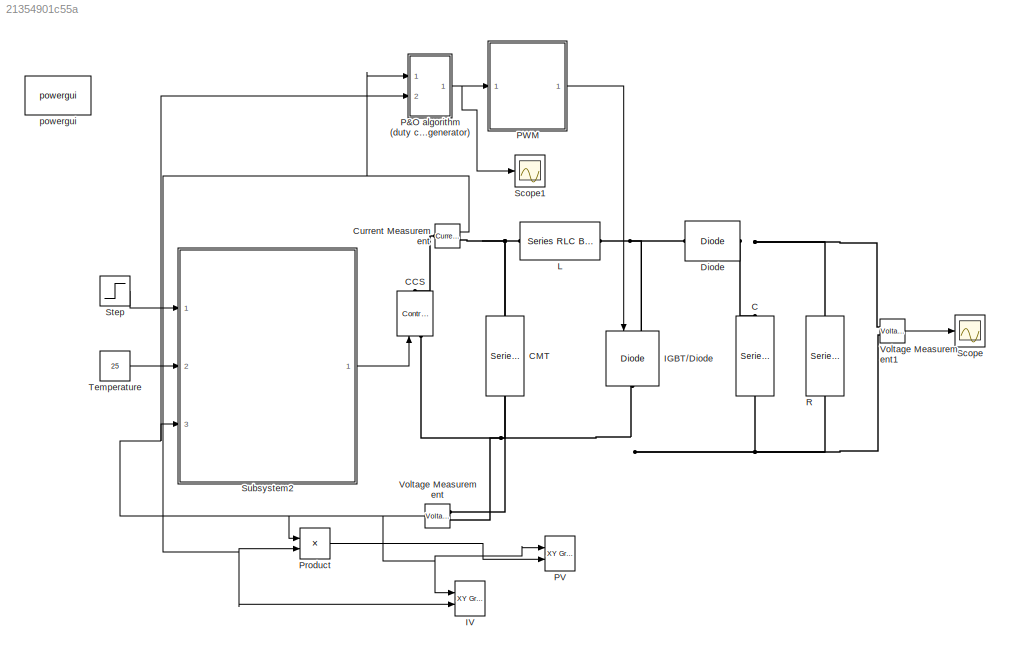
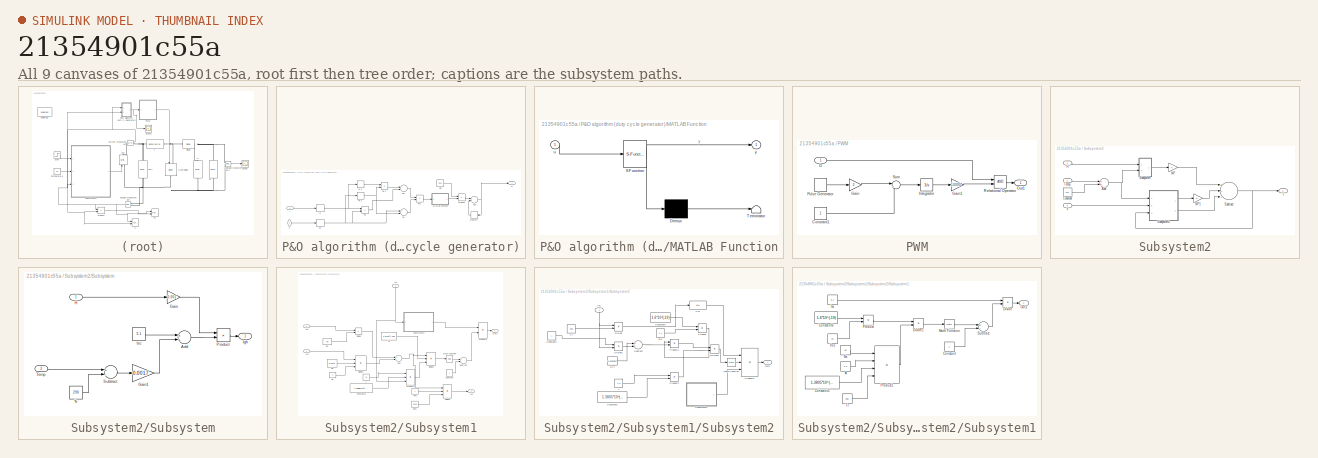
[diagram: thumbnail index - all 9 canvases of the model, root first then tree order]
MODEL slx_21354901c55a
KIND model
CONFIG AbsTol = auto
CONFIG FixedStep = auto
CONFIG MaxStep = auto
CONFIG MinStep = auto
CONFIG RelTol = 1e-3
CONFIG SampleTimeConstraint = Unconstrained
CONFIG Solver = ode23tb
CONFIG SolverMode = Auto
CONFIG SolverName = ode23tb
CONFIG StartTime = 0.0
CONFIG StopTime = 1.0
BLOCK [Reference] C  REF=powerlib/Elements/Series RLC Branch
  BranchType = C
  Capacitance = 1000e-6
  Inductance = 1e-3
  InitialCurrent = 0
  InitialVoltage = 0
  LConnTagsString = __new0
  Measurements = None
  Ports = [0, 0, 0, 0, 0, 1, 1]
  RConnTagsString = __new0
  Resistance = 1
  SetiL0 = off
  Setx0 = off
  SourceBlock = powerlib/Elements/Series RLC Branch
  SourceType = Series RLC Branch
BLOCK [Reference] CCS  REF=powerlib/Electrical
Sources/Controlled Current Source
  Amplitude = 0
  Frequency = 0
  Initialize = on
  Measurements = None
  Phase = 0
  Ports = [1, 0, 0, 0, 0, 1, 1]
  SourceBlock = powerlib/Electrical\nSources/Controlled Current Source
  SourceType = Controlled Current Source
  Source_Type = AC
BLOCK [Reference] CMT  REF=powerlib/Elements/Series RLC Branch
  BranchType = C
  Capacitance = 1000e-6
  Inductance = 1e-3
  InitialCurrent = 0
  InitialVoltage = 0
  LConnTagsString = __new0
  Measurements = None
  Ports = [0, 0, 0, 0, 0, 1, 1]
  RConnTagsString = __new0
  Resistance = 1
  SetiL0 = off
  Setx0 = off
  SourceBlock = powerlib/Elements/Series RLC Branch
  SourceType = Series RLC Branch
BLOCK [Reference] Current Measurement  REF=powerlib/Measurements/Current Measurement
  OutputType = Complex
  PSBequivalent = 0
  PhasorSimulation = off
  Ports = [0, 1, 0, 0, 0, 1, 1]
  SourceBlock = powerlib/Measurements/Current Measurement
  SourceType = Current Measurement
  UserDataPersistent = on
BLOCK [Reference] Diode  REF=powerlib/Power
Electronics/Diode
  Cs = 250e-9
  IC = 0
  Lon = 0
  Measurements = off
  Ports = [0, 0, 0, 0, 0, 1, 1]
  Ron = 0.001
  Rs = 500
  SourceBlock = powerlib/Power\nElectronics/Diode
  SourceType = Diode
  UseSnubber = off
  Vf = 0.8
BLOCK [Reference] IGBT//Diode  REF=powerlib/Power
Electronics/IGBT//Diode
  Cs = inf
  Measurements = off
  Ports = [1, 0, 0, 0, 0, 1, 1]
  Ron = 1e-3
  Rs = 1e5
  SourceBlock = powerlib/Power\nElectronics/IGBT//Diode
  SourceType = IGBT/Diode
BLOCK [Reference] IV  REF=simulink/Sinks/XY Graph
  Ports = [2]
  SourceBlock = simulink/Sinks/XY Graph
  SourceType = XY scope.
  st = -1
  xmax = 30
  xmin = 0
  ymax = 8
  ymin = 0
BLOCK [Reference] L  REF=powerlib/Elements/Series RLC Branch
  BranchType = L
  Capacitance = 1e-6
  Inductance = 4e-4
  InitialCurrent = 0
  InitialVoltage = 0
  LConnTagsString = __new0
  Measurements = None
  Ports = [0, 0, 0, 0, 0, 1, 1]
  RConnTagsString = __new0
  Resistance = 1
  SetiL0 = off
  Setx0 = off
  SourceBlock = powerlib/Elements/Series RLC Branch
  SourceType = Series RLC Branch
BLOCK [SubSystem] P&O algorithm (duty cycle generator)
  Ports = [2, 1]
  RequestExecContextInheritance = off
BLOCK [Sum] P&O algorithm (duty cycle generator)/Add
  InputSameDT = off
  OutDataTypeStr = Inherit: Inherit via internal rule
  Ports = [2, 1]
  SaturateOnIntegerOverflow = off
BLOCK [Outport] P&O algorithm (duty cycle generator)/D
  IconDisplay = Port number
BLOCK [Constant] P&O algorithm (duty cycle generator)/Dd
  Value = 0.01
BLOCK [Sum] P&O algorithm (duty cycle generator)/Dp
  InputSameDT = off
  Inputs = -+
  OutDataTypeStr = Inherit: Inherit via internal rule
  Ports = [2, 1]
  SaturateOnIntegerOverflow = off
BLOCK [Sum] P&O algorithm (duty cycle generator)/Dv
  InputSameDT = off
  Inputs = +-
  OutDataTypeStr = Inherit: Inherit via internal rule
  Ports = [2, 1]
  SaturateOnIntegerOverflow = off
BLOCK [Inport] P&O algorithm (duty cycle generator)/I
  IconDisplay = Port number
BLOCK [ZeroOrderHold] P&O algorithm (duty cycle generator)/Ik
  SampleTime = 0.001
BLOCK [Memory] P&O algorithm (duty cycle generator)/Ik-1
BLOCK [SubSystem] P&O algorithm (duty cycle generator)/MATLAB Function
  ErrorFcn = Stateflow.Translate.translate
  PermitHierarchicalResolution = ExplicitOnly
  Ports = [1, 1]
  RequestExecContextInheritance = off
  SFBlockType = MATLAB Function
  TreatAsAtomicUnit = on
BLOCK [Demux] P&O algorithm (duty cycle generator)/MATLAB Function/ Demux 
  Outputs = 1
  Ports = [1, 1]
BLOCK [S-Function] P&O algorithm (duty cycle generator)/MATLAB Function/ SFunction 
  EnableBusSupport = on
  FunctionName = sf_sfun
  PortCounts = [1 2]
  Ports = [1, 2]
  Tag = Stateflow S-Function mppt 2
BLOCK [Terminator] P&O algorithm (duty cycle generator)/MATLAB Function/ Terminator 
BLOCK [Inport] P&O algorithm (duty cycle generator)/MATLAB Function/u
  IconDisplay = Port number
BLOCK [Outport] P&O algorithm (duty cycle generator)/MATLAB Function/y
  IconDisplay = Port number
BLOCK [Memory] P&O algorithm (duty cycle generator)/Memory
BLOCK [Product] P&O algorithm (duty cycle generator)/Pk
  InputSameDT = off
  OutDataTypeStr = Inherit: Inherit via internal rule
  Ports = [2, 1]
  RndMeth = Floor
  SaturateOnIntegerOverflow = off
BLOCK [Product] P&O algorithm (duty cycle generator)/Pk-1
  InputSameDT = off
  OutDataTypeStr = Inherit: Inherit via internal rule
  Ports = [2, 1]
  RndMeth = Floor
  SaturateOnIntegerOverflow = off
BLOCK [Product] P&O algorithm (duty cycle generator)/Pk1
  InputSameDT = off
  OutDataTypeStr = Inherit: Inherit via internal rule
  Ports = [2, 1]
  RndMeth = Floor
  SaturateOnIntegerOverflow = off
BLOCK [Product] P&O algorithm (duty cycle generator)/Product
  InputSameDT = off
  OutDataTypeStr = Inherit: Inherit via internal rule
  Ports = [2, 1]
  RndMeth = Floor
  SaturateOnIntegerOverflow = off
BLOCK [Inport] P&O algorithm (duty cycle generator)/V
  IconDisplay = Port number
  Port = 2
BLOCK [ZeroOrderHold] P&O algorithm (duty cycle generator)/Vk
  SampleTime = 0.001
BLOCK [Memory] P&O algorithm (duty cycle generator)/Vk-1
BLOCK [Reference] PV  REF=simulink/Sinks/XY Graph
  Ports = [2]
  SourceBlock = simulink/Sinks/XY Graph
  SourceType = XY scope.
  st = -1
  xmax = 20
  xmin = 0
  ymax = 75
  ymin = 0
BLOCK [SubSystem] PWM
  Ports = [1, 1]
  RequestExecContextInheritance = off
BLOCK [Constant] PWM/Constant1
BLOCK [Inport] PWM/D
  IconDisplay = Port number
BLOCK [Gain] PWM/Gain
  Gain = 2
  OutDataTypeStr = Inherit: Inherit via internal rule
  ParamDataTypeStr = Inherit: Inherit via internal rule
  SaturateOnIntegerOverflow = off
BLOCK [Gain] PWM/Gain1
  Gain = 10000
  OutDataTypeStr = Inherit: Inherit via internal rule
  ParamDataTypeStr = Inherit: Inherit via internal rule
  SaturateOnIntegerOverflow = off
BLOCK [Integrator] PWM/Integrator
  Ports = [1, 1]
BLOCK [Outport] PWM/Out1
  IconDisplay = Port number
BLOCK [DiscretePulseGenerator] PWM/Pulse Generator
  Period = 0.0002
  Ports = [0, 1]
  PulseType = Time based
  PulseWidth = 50
BLOCK [RelationalOperator] PWM/Relational Operator
  InputSameDT = off
  OutDataTypeStr = boolean
  Ports = [2, 1]
BLOCK [Sum] PWM/Sum
  IconShape = round
  InputSameDT = off
  Inputs = |+-
  OutDataTypeStr = Inherit: Inherit via internal rule
  Ports = [2, 1]
  SaturateOnIntegerOverflow = off
BLOCK [Product] Product
  InputSameDT = off
  OutDataTypeStr = Inherit: Inherit via internal rule
  Ports = [2, 1]
  RndMeth = Floor
  SaturateOnIntegerOverflow = off
BLOCK [Reference] R  REF=powerlib/Elements/Series RLC Branch
  BranchType = R
  Capacitance = 1e-6
  Inductance = 1e-3
  InitialCurrent = 0
  InitialVoltage = 0
  LConnTagsString = __new0
  Measurements = None
  Ports = [0, 0, 0, 0, 0, 1, 1]
  RConnTagsString = __new0
  Resistance = 5
  SetiL0 = off
  Setx0 = off
  SourceBlock = powerlib/Elements/Series RLC Branch
  SourceType = Series RLC Branch
BLOCK [Scope] Scope
  Floating = off
  NumInputPorts = 1
  Ports = [1]
  YMax = 20.2
  YMin = 18.2
BLOCK [Scope] Scope1
  Floating = off
  NumInputPorts = 1
  Ports = [1]
  SaveName = ScopeData1
  YMax = -1.75
BLOCK [Step] Step
  After = 1000
  Before = 600
  SampleTime = 0
  Time = 0.5
BLOCK [SubSystem] Subsystem2
  Ports = [3, 1]
  RequestExecContextInheritance = off
BLOCK [Sum] Subsystem2/Add
  InputSameDT = off
  OutDataTypeStr = Inherit: Inherit via internal rule
  Ports = [2, 1]
  SaturateOnIntegerOverflow = off
BLOCK [Constant] Subsystem2/Constant
  Value = 273
BLOCK [Inport] Subsystem2/H
  IconDisplay = Port number
BLOCK [Outport] Subsystem2/I
  IconDisplay = Port number
BLOCK [Gain] Subsystem2/NP
  OutDataTypeStr = Inherit: Inherit via internal rule
  ParamDataTypeStr = Inherit: Inherit via internal rule
  SaturateOnIntegerOverflow = off
BLOCK [Gain] Subsystem2/NP1
  OutDataTypeStr = Inherit: Inherit via internal rule
  ParamDataTypeStr = Inherit: Inherit via internal rule
  SaturateOnIntegerOverflow = off
BLOCK [SubSystem] Subsystem2/Subsystem
  Ports = [2, 1]
  RequestExecContextInheritance = off
BLOCK [Sum] Subsystem2/Subsystem/Add
  InputSameDT = off
  OutDataTypeStr = Inherit: Inherit via internal rule
  Ports = [2, 1]
  SaturateOnIntegerOverflow = off
BLOCK [Gain] Subsystem2/Subsystem/Gain
  Gain = 0.001
  OutDataTypeStr = Inherit: Inherit via internal rule
  ParamDataTypeStr = Inherit: Inherit via internal rule
  SaturateOnIntegerOverflow = off
BLOCK [Gain] Subsystem2/Subsystem/Gain1
  Gain = 0.0017
  OutDataTypeStr = Inherit: Inherit via internal rule
  ParamDataTypeStr = Inherit: Inherit via internal rule
  SaturateOnIntegerOverflow = off
BLOCK [Inport] Subsystem2/Subsystem/H
  IconDisplay = Port number
BLOCK [Outport] Subsystem2/Subsystem/Igh
  IconDisplay = Port number
BLOCK [Constant] Subsystem2/Subsystem/Isc
  Value = 5.1
BLOCK [Product] Subsystem2/Subsystem/Product
  InputSameDT = off
  OutDataTypeStr = Inherit: Inherit via internal rule
  Ports = [2, 1]
  RndMeth = Floor
  SaturateOnIntegerOverflow = off
BLOCK [Sum] Subsystem2/Subsystem/Subtract
  InputSameDT = off
  Inputs = +-
  OutDataTypeStr = Inherit: Inherit via internal rule
  Ports = [2, 1]
  SaturateOnIntegerOverflow = off
BLOCK [Inport] Subsystem2/Subsystem/Temp
  IconDisplay = Port number
  Port = 2
BLOCK [Constant] Subsystem2/Subsystem/Tr
  Value = 298
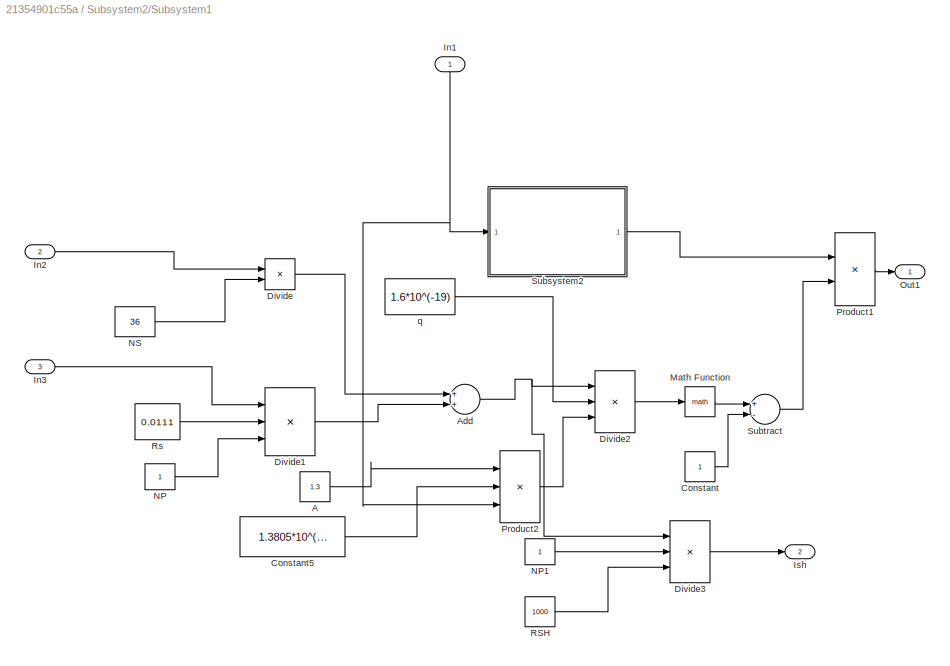
BLOCK [SubSystem] Subsystem2/Subsystem1
  Ports = [3, 2]
  RequestExecContextInheritance = off
BLOCK [Constant] Subsystem2/Subsystem1/A
  Value = 1.3
BLOCK [Sum] Subsystem2/Subsystem1/Add
  InputSameDT = off
  OutDataTypeStr = Inherit: Inherit via internal rule
  Ports = [2, 1]
  SaturateOnIntegerOverflow = off
BLOCK [Constant] Subsystem2/Subsystem1/Constant
BLOCK [Constant] Subsystem2/Subsystem1/Constant5
  Value = 1.3805*10^(-23)
BLOCK [Product] Subsystem2/Subsystem1/Divide
  InputSameDT = off
  Inputs = */
  OutDataTypeStr = Inherit: Inherit via internal rule
  Ports = [2, 1]
  RndMeth = Floor
  SaturateOnIntegerOverflow = off
BLOCK [Product] Subsystem2/Subsystem1/Divide1
  InputSameDT = off
  Inputs = **/
  OutDataTypeStr = Inherit: Inherit via internal rule
  Ports = [3, 1]
  RndMeth = Floor
  SaturateOnIntegerOverflow = off
BLOCK [Product] Subsystem2/Subsystem1/Divide2
  InputSameDT = off
  Inputs = **/
  OutDataTypeStr = Inherit: Inherit via internal rule
  Ports = [3, 1]
  RndMeth = Floor
  SaturateOnIntegerOverflow = off
BLOCK [Product] Subsystem2/Subsystem1/Divide3
  InputSameDT = off
  Inputs = **/
  OutDataTypeStr = Inherit: Inherit via internal rule
  Ports = [3, 1]
  RndMeth = Floor
  SaturateOnIntegerOverflow = off
BLOCK [Inport] Subsystem2/Subsystem1/In1
  IconDisplay = Port number
BLOCK [Inport] Subsystem2/Subsystem1/In2
  IconDisplay = Port number
  Port = 2
BLOCK [Inport] Subsystem2/Subsystem1/In3
  IconDisplay = Port number
  Port = 3
BLOCK [Outport] Subsystem2/Subsystem1/Ish
  IconDisplay = Port number
  Port = 2
BLOCK [Math] Subsystem2/Subsystem1/Math Function
  Ports = [1, 1]
BLOCK [Constant] Subsystem2/Subsystem1/NP
BLOCK [Constant] Subsystem2/Subsystem1/NP1
BLOCK [Constant] Subsystem2/Subsystem1/NS
  Value = 36
BLOCK [Outport] Subsystem2/Subsystem1/Out1
  IconDisplay = Port number
BLOCK [Product] Subsystem2/Subsystem1/Product1
  InputSameDT = off
  OutDataTypeStr = Inherit: Inherit via internal rule
  Ports = [2, 1]
  RndMeth = Floor
  SaturateOnIntegerOverflow = off
BLOCK [Product] Subsystem2/Subsystem1/Product2
  InputSameDT = off
  Inputs = 3
  OutDataTypeStr = Inherit: Inherit via internal rule
  Ports = [3, 1]
  RndMeth = Floor
  SaturateOnIntegerOverflow = off
BLOCK [Constant] Subsystem2/Subsystem1/RSH
  Value = 1000
BLOCK [Constant] Subsystem2/Subsystem1/Rs
  Value = 0.0111
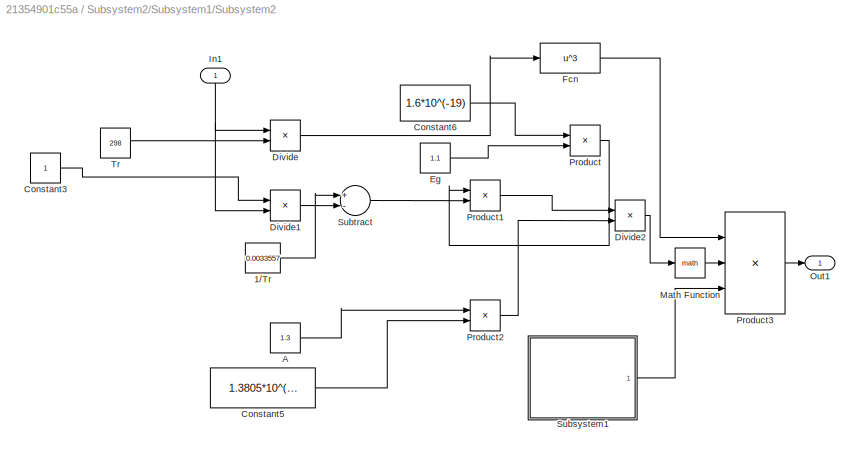
BLOCK [SubSystem] Subsystem2/Subsystem1/Subsystem2
  Ports = [1, 1]
  RequestExecContextInheritance = off
BLOCK [Constant] Subsystem2/Subsystem1/Subsystem2/1//Tr
  Value = 0.0033557
BLOCK [Constant] Subsystem2/Subsystem1/Subsystem2/A
  Value = 1.3
BLOCK [Constant] Subsystem2/Subsystem1/Subsystem2/Constant3
BLOCK [Constant] Subsystem2/Subsystem1/Subsystem2/Constant5
  Value = 1.3805*10^(-23)
BLOCK [Constant] Subsystem2/Subsystem1/Subsystem2/Constant6
  Value = 1.6*10^(-19)
BLOCK [Product] Subsystem2/Subsystem1/Subsystem2/Divide
  InputSameDT = off
  Inputs = */
  OutDataTypeStr = Inherit: Inherit via internal rule
  Ports = [2, 1]
  RndMeth = Floor
  SaturateOnIntegerOverflow = off
BLOCK [Product] Subsystem2/Subsystem1/Subsystem2/Divide1
  InputSameDT = off
  Inputs = */
  OutDataTypeStr = Inherit: Inherit via internal rule
  Ports = [2, 1]
  RndMeth = Floor
  SaturateOnIntegerOverflow = off
BLOCK [Product] Subsystem2/Subsystem1/Subsystem2/Divide2
  InputSameDT = off
  Inputs = */
  OutDataTypeStr = Inherit: Inherit via internal rule
  Ports = [2, 1]
  RndMeth = Floor
  SaturateOnIntegerOverflow = off
BLOCK [Constant] Subsystem2/Subsystem1/Subsystem2/Eg
  Value = 1.1
BLOCK [Fcn] Subsystem2/Subsystem1/Subsystem2/Fcn
  Expr = u^3
BLOCK [Inport] Subsystem2/Subsystem1/Subsystem2/In1
  IconDisplay = Port number
BLOCK [Math] Subsystem2/Subsystem1/Subsystem2/Math Function
  Ports = [1, 1]
BLOCK [Outport] Subsystem2/Subsystem1/Subsystem2/Out1
  IconDisplay = Port number
BLOCK [Product] Subsystem2/Subsystem1/Subsystem2/Product
  InputSameDT = off
  OutDataTypeStr = Inherit: Inherit via internal rule
  Ports = [2, 1]
  RndMeth = Floor
  SaturateOnIntegerOverflow = off
BLOCK [Product] Subsystem2/Subsystem1/Subsystem2/Product1
  InputSameDT = off
  OutDataTypeStr = Inherit: Inherit via internal rule
  Ports = [2, 1]
  RndMeth = Floor
  SaturateOnIntegerOverflow = off
BLOCK [Product] Subsystem2/Subsystem1/Subsystem2/Product2
  InputSameDT = off
  OutDataTypeStr = Inherit: Inherit via internal rule
  Ports = [2, 1]
  RndMeth = Floor
  SaturateOnIntegerOverflow = off
BLOCK [Product] Subsystem2/Subsystem1/Subsystem2/Product3
  InputSameDT = off
  Inputs = 3
  OutDataTypeStr = Inherit: Inherit via internal rule
  Ports = [3, 1]
  RndMeth = Floor
  SaturateOnIntegerOverflow = off
BLOCK [SubSystem] Subsystem2/Subsystem1/Subsystem2/Subsystem1
  Ports = [0, 1]
  RequestExecContextInheritance = off
BLOCK [Constant] Subsystem2/Subsystem1/Subsystem2/Subsystem1/A
  Value = 1.3
BLOCK [Constant] Subsystem2/Subsystem1/Subsystem2/Subsystem1/Constant
BLOCK [Constant] Subsystem2/Subsystem1/Subsystem2/Subsystem1/Constant5
  Value = 1.3805*10^(-23)
BLOCK [Constant] Subsystem2/Subsystem1/Subsystem2/Subsystem1/Constant6
  Value = 1.6*10^(-19)
BLOCK [Product] Subsystem2/Subsystem1/Subsystem2/Subsystem1/Divide
  InputSameDT = off
  Inputs = */
  OutDataTypeStr = Inherit: Inherit via internal rule
  Ports = [2, 1]
  RndMeth = Floor
  SaturateOnIntegerOverflow = off
BLOCK [Product] Subsystem2/Subsystem1/Subsystem2/Subsystem1/Divide1
  InputSameDT = off
  Inputs = */
  OutDataTypeStr = Inherit: Inherit via internal rule
  Ports = [2, 1]
  RndMeth = Floor
  SaturateOnIntegerOverflow = off
BLOCK [Constant] Subsystem2/Subsystem1/Subsystem2/Subsystem1/Isc
  Value = 5.1
BLOCK [Math] Subsystem2/Subsystem1/Subsystem2/Subsystem1/Math Function
  Ports = [1, 1]
BLOCK [Constant] Subsystem2/Subsystem1/Subsystem2/Subsystem1/Ns
  Value = 36
BLOCK [Outport] Subsystem2/Subsystem1/Subsystem2/Subsystem1/Out1
  IconDisplay = Port number
BLOCK [Product] Subsystem2/Subsystem1/Subsystem2/Subsystem1/Product
  InputSameDT = off
  OutDataTypeStr = Inherit: Inherit via internal rule
  Ports = [2, 1]
  RndMeth = Floor
  SaturateOnIntegerOverflow = off
BLOCK [Product] Subsystem2/Subsystem1/Subsystem2/Subsystem1/Product1
  InputSameDT = off
  Inputs = 4
  OutDataTypeStr = Inherit: Inherit via internal rule
  Ports = [4, 1]
  RndMeth = Floor
  SaturateOnIntegerOverflow = off
BLOCK [Sum] Subsystem2/Subsystem1/Subsystem2/Subsystem1/Subtract
  InputSameDT = off
  Inputs = +-
  OutDataTypeStr = Inherit: Inherit via internal rule
  Ports = [2, 1]
  SaturateOnIntegerOverflow = off
BLOCK [Constant] Subsystem2/Subsystem1/Subsystem2/Subsystem1/Tr
  Value = 298
BLOCK [Constant] Subsystem2/Subsystem1/Subsystem2/Subsystem1/Voc
  Value = 22
BLOCK [Sum] Subsystem2/Subsystem1/Subsystem2/Subtract
  InputSameDT = off
  Inputs = +-
  OutDataTypeStr = Inherit: Inherit via internal rule
  Ports = [2, 1]
  SaturateOnIntegerOverflow = off
BLOCK [Constant] Subsystem2/Subsystem1/Subsystem2/Tr
  Value = 298
BLOCK [Sum] Subsystem2/Subsystem1/Subtract
  InputSameDT = off
  Inputs = +-
  OutDataTypeStr = Inherit: Inherit via internal rule
  Ports = [2, 1]
  SaturateOnIntegerOverflow = off
BLOCK [Constant] Subsystem2/Subsystem1/q
  Value = 1.6*10^(-19)
BLOCK [Sum] Subsystem2/Subtract
  InputSameDT = off
  Inputs = +--
  OutDataTypeStr = Inherit: Inherit via internal rule
  Ports = [3, 1]
  SaturateOnIntegerOverflow = off
BLOCK [Inport] Subsystem2/Temp
  IconDisplay = Port number
  Port = 2
BLOCK [Inport] Subsystem2/V
  IconDisplay = Port number
  Port = 3
BLOCK [Constant] Temperature
  Value = 25
BLOCK [Reference] Voltage Measurement  REF=powerlib/Measurements/Voltage Measurement
  OutputType = Complex
  PSBequivalent = 0
  PhasorSimulation = off
  Ports = [0, 1, 0, 0, 0, 2]
  SourceBlock = powerlib/Measurements/Voltage Measurement
  SourceType = Voltage Measurement
  UserDataPersistent = on
BLOCK [Reference] Voltage Measurement1  REF=powerlib/Measurements/Voltage Measurement
  OutputType = Complex
  PSBequivalent = 0
  PhasorSimulation = off
  Ports = [0, 1, 0, 0, 0, 2]
  SourceBlock = powerlib/Measurements/Voltage Measurement
  SourceType = Voltage Measurement
  UserDataPersistent = on
BLOCK [Reference] powergui  REF=powerlib/powergui
  DisableRonSwitches = off
  DisableSnubberDevices = off
  DisableVfSwitches = off
  DisplayEquations = off
  DisplayStyle = 1
  EnableUseOfTLC = off
  ErrMax = 1e-4
  Frange = [0:2:500]
  FreqAxis = off
  FunctionMessages = off
  HookPort = off
  Interpol = off
  Iterations = 50
  MaxFrequency = 1000
  Pbase = 100e6
  Ports = []
  Priority = 1
  ResistiveCurrentMeasurement = off
  RestoreLinks = warning
  RmsSteady = 1
  SPID = off
  SampleTime = 50e-6
  ShowGrid = off
  SolverType = Tustin/Backward Euler (TBE)
  SourceBlock = powerlib/powergui
  SourceType = PSB option menu block
  StartTime = 0.0
  SwTol = 0
  Ts = 100
  UnitsV = kV
  UnitsW = MW
  UserDataPersistent = on
  Xlog = on
  Ylog = off
  ZoomFFT = off
  buscounter = 0
  cycles = 1
  display = off
  echomessages = off
  frequency = 60
  frequencyindice = 0
  frequencyindicesteady = 1
  fundamental = 60
  methode = off
  save = off
  structure = 0
  variable = ZData
  x0status = blocks
NET Current Measurement:1 -> IV:2, P&O algorithm (duty cycle generator):1, Product:2
NET P&O algorithm (duty cycle generator)/Add:1 -> P&O algorithm (duty cycle generator)/D:1, P&O algorithm (duty cycle generator)/Memory:1
LINE P&O algorithm (duty cycle generator)/Dd:1 -> P&O algorithm (duty cycle generator)/Product:1
LINE P&O algorithm (duty cycle generator)/Dp:1 -> P&O algorithm (duty cycle generator)/Pk1:1
LINE P&O algorithm (duty cycle generator)/Dv:1 -> P&O algorithm (duty cycle generator)/Pk1:2
LINE P&O algorithm (duty cycle generator)/I:1 -> P&O algorithm (duty cycle generator)/Ik:1
LINE P&O algorithm (duty cycle generator)/Ik-1:1 -> P&O algorithm (duty cycle generator)/Pk-1:1
NET P&O algorithm (duty cycle generator)/Ik:1 -> P&O algorithm (duty cycle generator)/Ik-1:1, P&O algorithm (duty cycle generator)/Pk:1
LINE P&O algorithm (duty cycle generator)/MATLAB Function:1 -> P&O algorithm (duty cycle generator)/Product:2
LINE P&O algorithm (duty cycle generator)/Memory:1 -> P&O algorithm (duty cycle generator)/Add:2
LINE P&O algorithm (duty cycle generator)/Pk-1:1 -> P&O algorithm (duty cycle generator)/Dp:1
LINE P&O algorithm (duty cycle generator)/Pk1:1 -> P&O algorithm (duty cycle generator)/MATLAB Function:1
LINE P&O algorithm (duty cycle generator)/Pk:1 -> P&O algorithm (duty cycle generator)/Dp:2
LINE P&O algorithm (duty cycle generator)/Product:1 -> P&O algorithm (duty cycle generator)/Add:1
LINE P&O algorithm (duty cycle generator)/V:1 -> P&O algorithm (duty cycle generator)/Vk:1
NET P&O algorithm (duty cycle generator)/Vk-1:1 -> P&O algorithm (duty cycle generator)/Dv:2, P&O algorithm (duty cycle generator)/Pk-1:2
NET P&O algorithm (duty cycle generator)/Vk:1 -> P&O algorithm (duty cycle generator)/Dv:1, P&O algorithm (duty cycle generator)/Pk:2, P&O algorithm (duty cycle generator)/Vk-1:1
NET P&O algorithm (duty cycle generator):1 -> PWM:1, Scope1:1
LINE PWM/Constant1:1 -> PWM/Sum:2
LINE PWM/D:1 -> PWM/Relational Operator:1
LINE PWM/Gain1:1 -> PWM/Relational Operator:2
LINE PWM/Gain:1 -> PWM/Sum:1
LINE PWM/Integrator:1 -> PWM/Gain1:1
LINE PWM/Pulse Generator:1 -> PWM/Gain:1
LINE PWM/Relational Operator:1 -> PWM/Out1:1
LINE PWM/Sum:1 -> PWM/Integrator:1
LINE PWM:1 -> IGBT//Diode:1
LINE Product:1 -> PV:2
LINE Step:1 -> Subsystem2:1
NET Subsystem2/Add:1 -> Subsystem2/Subsystem1:1, Subsystem2/Subsystem:2
LINE Subsystem2/Constant:1 -> Subsystem2/Add:2
LINE Subsystem2/H:1 -> Subsystem2/Subsystem:1
LINE Subsystem2/NP1:1 -> Subsystem2/Subtract:2
LINE Subsystem2/NP:1 -> Subsystem2/Subtract:1
LINE Subsystem2/Subsystem/Add:1 -> Subsystem2/Subsystem/Product:2
LINE Subsystem2/Subsystem/Gain1:1 -> Subsystem2/Subsystem/Add:2
LINE Subsystem2/Subsystem/Gain:1 -> Subsystem2/Subsystem/Product:1
LINE Subsystem2/Subsystem/H:1 -> Subsystem2/Subsystem/Gain:1
LINE Subsystem2/Subsystem/Isc:1 -> Subsystem2/Subsystem/Add:1
LINE Subsystem2/Subsystem/Product:1 -> Subsystem2/Subsystem/Igh:1
LINE Subsystem2/Subsystem/Subtract:1 -> Subsystem2/Subsystem/Gain1:1
LINE Subsystem2/Subsystem/Temp:1 -> Subsystem2/Subsystem/Subtract:1
LINE Subsystem2/Subsystem/Tr:1 -> Subsystem2/Subsystem/Subtract:2
LINE Subsystem2/Subsystem1/A:1 -> Subsystem2/Subsystem1/Product2:1
NET Subsystem2/Subsystem1/Add:1 -> Subsystem2/Subsystem1/Divide2:1, Subsystem2/Subsystem1/Divide3:1
LINE Subsystem2/Subsystem1/Constant5:1 -> Subsystem2/Subsystem1/Product2:2
LINE Subsystem2/Subsystem1/Constant:1 -> Subsystem2/Subsystem1/Subtract:2
LINE Subsystem2/Subsystem1/Divide1:1 -> Subsystem2/Subsystem1/Add:2
LINE Subsystem2/Subsystem1/Divide2:1 -> Subsystem2/Subsystem1/Math Function:1
LINE Subsystem2/Subsystem1/Divide3:1 -> Subsystem2/Subsystem1/Ish:1
LINE Subsystem2/Subsystem1/Divide:1 -> Subsystem2/Subsystem1/Add:1
NET Subsystem2/Subsystem1/In1:1 -> Subsystem2/Subsystem1/Product2:3, Subsystem2/Subsystem1/Subsystem2:1
LINE Subsystem2/Subsystem1/In2:1 -> Subsystem2/Subsystem1/Divide:1
LINE Subsystem2/Subsystem1/In3:1 -> Subsystem2/Subsystem1/Divide1:1
LINE Subsystem2/Subsystem1/Math Function:1 -> Subsystem2/Subsystem1/Subtract:1
LINE Subsystem2/Subsystem1/NP1:1 -> Subsystem2/Subsystem1/Divide3:2
LINE Subsystem2/Subsystem1/NP:1 -> Subsystem2/Subsystem1/Divide1:3
LINE Subsystem2/Subsystem1/NS:1 -> Subsystem2/Subsystem1/Divide:2
LINE Subsystem2/Subsystem1/Product1:1 -> Subsystem2/Subsystem1/Out1:1
LINE Subsystem2/Subsystem1/Product2:1 -> Subsystem2/Subsystem1/Divide2:3
LINE Subsystem2/Subsystem1/RSH:1 -> Subsystem2/Subsystem1/Divide3:3
LINE Subsystem2/Subsystem1/Rs:1 -> Subsystem2/Subsystem1/Divide1:2
LINE Subsystem2/Subsystem1/Subsystem2/1//Tr:1 -> Subsystem2/Subsystem1/Subsystem2/Subtract:1
LINE Subsystem2/Subsystem1/Subsystem2/A:1 -> Subsystem2/Subsystem1/Subsystem2/Product2:1
LINE Subsystem2/Subsystem1/Subsystem2/Constant3:1 -> Subsystem2/Subsystem1/Subsystem2/Divide1:1
LINE Subsystem2/Subsystem1/Subsystem2/Constant5:1 -> Subsystem2/Subsystem1/Subsystem2/Product2:2
LINE Subsystem2/Subsystem1/Subsystem2/Constant6:1 -> Subsystem2/Subsystem1/Subsystem2/Product:1
LINE Subsystem2/Subsystem1/Subsystem2/Divide1:1 -> Subsystem2/Subsystem1/Subsystem2/Subtract:2
LINE Subsystem2/Subsystem1/Subsystem2/Divide2:1 -> Subsystem2/Subsystem1/Subsystem2/Math Function:1
LINE Subsystem2/Subsystem1/Subsystem2/Divide:1 -> Subsystem2/Subsystem1/Subsystem2/Fcn:1
LINE Subsystem2/Subsystem1/Subsystem2/Eg:1 -> Subsystem2/Subsystem1/Subsystem2/Product:2
LINE Subsystem2/Subsystem1/Subsystem2/Fcn:1 -> Subsystem2/Subsystem1/Subsystem2/Product3:1
NET Subsystem2/Subsystem1/Subsystem2/In1:1 -> Subsystem2/Subsystem1/Subsystem2/Divide1:2, Subsystem2/Subsystem1/Subsystem2/Divide:1
LINE Subsystem2/Subsystem1/Subsystem2/Math Function:1 -> Subsystem2/Subsystem1/Subsystem2/Product3:2
LINE Subsystem2/Subsystem1/Subsystem2/Product1:1 -> Subsystem2/Subsystem1/Subsystem2/Divide2:1
LINE Subsystem2/Subsystem1/Subsystem2/Product2:1 -> Subsystem2/Subsystem1/Subsystem2/Divide2:2
LINE Subsystem2/Subsystem1/Subsystem2/Product3:1 -> Subsystem2/Subsystem1/Subsystem2/Out1:1
LINE Subsystem2/Subsystem1/Subsystem2/Product:1 -> Subsystem2/Subsystem1/Subsystem2/Product1:1
LINE Subsystem2/Subsystem1/Subsystem2/Subsystem1/A:1 -> Subsystem2/Subsystem1/Subsystem2/Subsystem1/Product1:2
LINE Subsystem2/Subsystem1/Subsystem2/Subsystem1/Constant5:1 -> Subsystem2/Subsystem1/Subsystem2/Subsystem1/Product1:3
LINE Subsystem2/Subsystem1/Subsystem2/Subsystem1/Constant6:1 -> Subsystem2/Subsystem1/Subsystem2/Subsystem1/Product:1
LINE Subsystem2/Subsystem1/Subsystem2/Subsystem1/Constant:1 -> Subsystem2/Subsystem1/Subsystem2/Subsystem1/Subtract:2
LINE Subsystem2/Subsystem1/Subsystem2/Subsystem1/Divide1:1 -> Subsystem2/Subsystem1/Subsystem2/Subsystem1/Math Function:1
LINE Subsystem2/Subsystem1/Subsystem2/Subsystem1/Divide:1 -> Subsystem2/Subsystem1/Subsystem2/Subsystem1/Out1:1
LINE Subsystem2/Subsystem1/Subsystem2/Subsystem1/Isc:1 -> Subsystem2/Subsystem1/Subsystem2/Subsystem1/Divide:1
LINE Subsystem2/Subsystem1/Subsystem2/Subsystem1/Math Function:1 -> Subsystem2/Subsystem1/Subsystem2/Subsystem1/Subtract:1
LINE Subsystem2/Subsystem1/Subsystem2/Subsystem1/Ns:1 -> Subsystem2/Subsystem1/Subsystem2/Subsystem1/Product1:1
LINE Subsystem2/Subsystem1/Subsystem2/Subsystem1/Product1:1 -> Subsystem2/Subsystem1/Subsystem2/Subsystem1/Divide1:2
LINE Subsystem2/Subsystem1/Subsystem2/Subsystem1/Product:1 -> Subsystem2/Subsystem1/Subsystem2/Subsystem1/Divide1:1
LINE Subsystem2/Subsystem1/Subsystem2/Subsystem1/Subtract:1 -> Subsystem2/Subsystem1/Subsystem2/Subsystem1/Divide:2
LINE Subsystem2/Subsystem1/Subsystem2/Subsystem1/Tr:1 -> Subsystem2/Subsystem1/Subsystem2/Subsystem1/Product1:4
LINE Subsystem2/Subsystem1/Subsystem2/Subsystem1/Voc:1 -> Subsystem2/Subsystem1/Subsystem2/Subsystem1/Product:2
LINE Subsystem2/Subsystem1/Subsystem2/Subsystem1:1 -> Subsystem2/Subsystem1/Subsystem2/Product3:3
LINE Subsystem2/Subsystem1/Subsystem2/Subtract:1 -> Subsystem2/Subsystem1/Subsystem2/Product1:2
LINE Subsystem2/Subsystem1/Subsystem2/Tr:1 -> Subsystem2/Subsystem1/Subsystem2/Divide:2
LINE Subsystem2/Subsystem1/Subsystem2:1 -> Subsystem2/Subsystem1/Product1:1
LINE Subsystem2/Subsystem1/Subtract:1 -> Subsystem2/Subsystem1/Product1:2
LINE Subsystem2/Subsystem1/q:1 -> Subsystem2/Subsystem1/Divide2:2
LINE Subsystem2/Subsystem1:1 -> Subsystem2/NP1:1
LINE Subsystem2/Subsystem1:2 -> Subsystem2/Subtract:3
LINE Subsystem2/Subsystem:1 -> Subsystem2/NP:1
NET Subsystem2/Subtract:1 -> Subsystem2/I:1, Subsystem2/Subsystem1:3
LINE Subsystem2/Temp:1 -> Subsystem2/Add:1
LINE Subsystem2/V:1 -> Subsystem2/Subsystem1:2
LINE Subsystem2:1 -> CCS:1
LINE Temperature:1 -> Subsystem2:2
LINE Voltage Measurement1:1 -> Scope:1
NET Voltage Measurement:1 -> IV:1, P&O algorithm (duty cycle generator):2, PV:1, Product:1, Subsystem2:3
PNET net1: C:LConn1 -- Diode:RConn1 -- R:LConn1 -- Voltage Measurement1:LConn1
PNET net2: C:RConn1 -- CCS:LConn1 -- CMT:RConn1 -- IGBT//Diode:RConn1 -- R:RConn1 -- Voltage Measurement1:LConn2 -- Voltage Measurement:LConn2
PLINE CCS:RConn1 -- Current Measurement:LConn1
PNET net3: CMT:LConn1 -- Current Measurement:RConn1 -- L:LConn1 -- Voltage Measurement:LConn1
PNET net4: Diode:LConn1 -- IGBT//Diode:LConn1 -- L:RConn1
note: NET lines group one-source signal fan-out (src -> all destinations, sorted); 1:1 wires keep LINE; PNET lines group multi-terminal physical nets as a canonical sorted terminal list (undirected conserving connections); 2-terminal nets keep the pairwise PLINE form
CHART P&O algorithm
(duty cycle generator)/MATLAB Function states=1 transitions=1
  STATE_LABEL 'eML_blk_kernel()'
  STATE_LABEL 'SCRIPT:\nfunction y = fcn(u)\ny=0;\nif(u==0)\n    y=0;\nend\nif(u>0)\n    y=-1;\nend\nif(u<0)\n    y=1;\nend\n'
